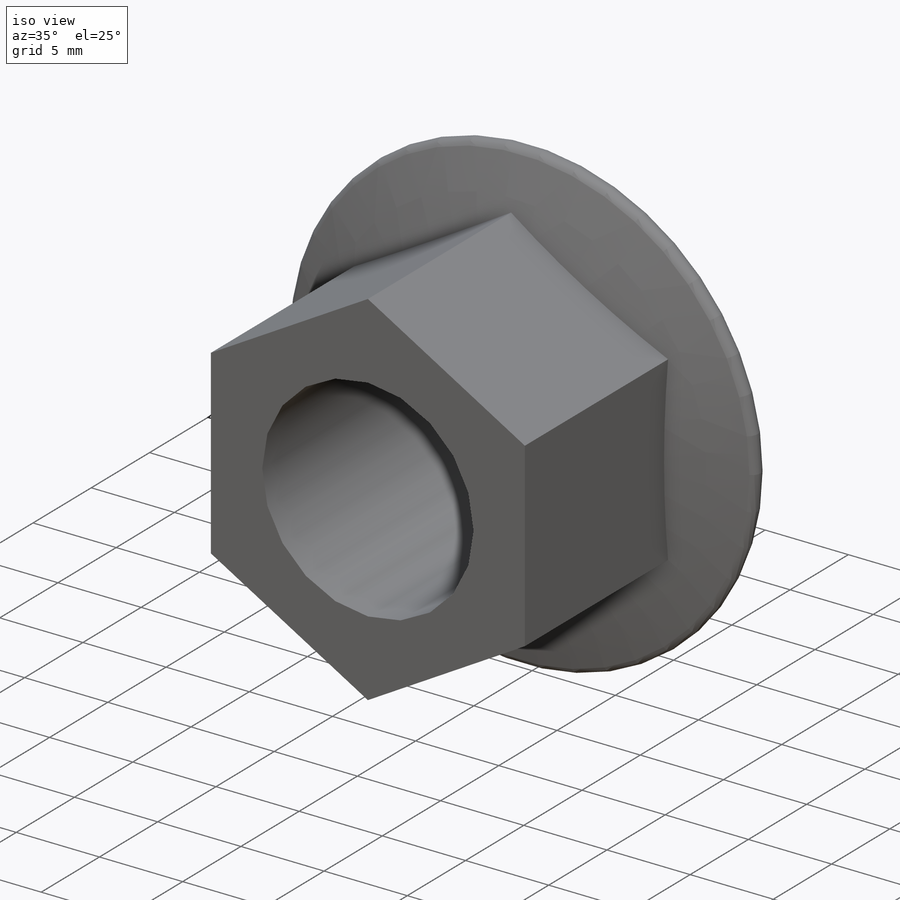
[diagram: iso view]
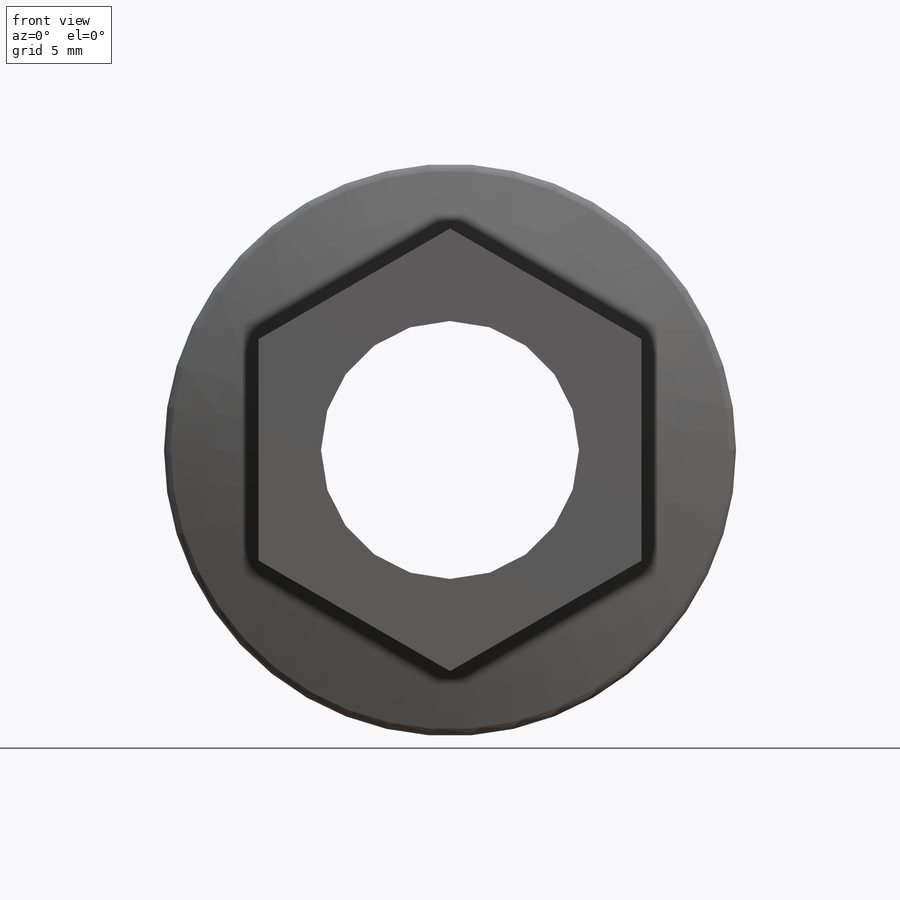
[diagram: front view]
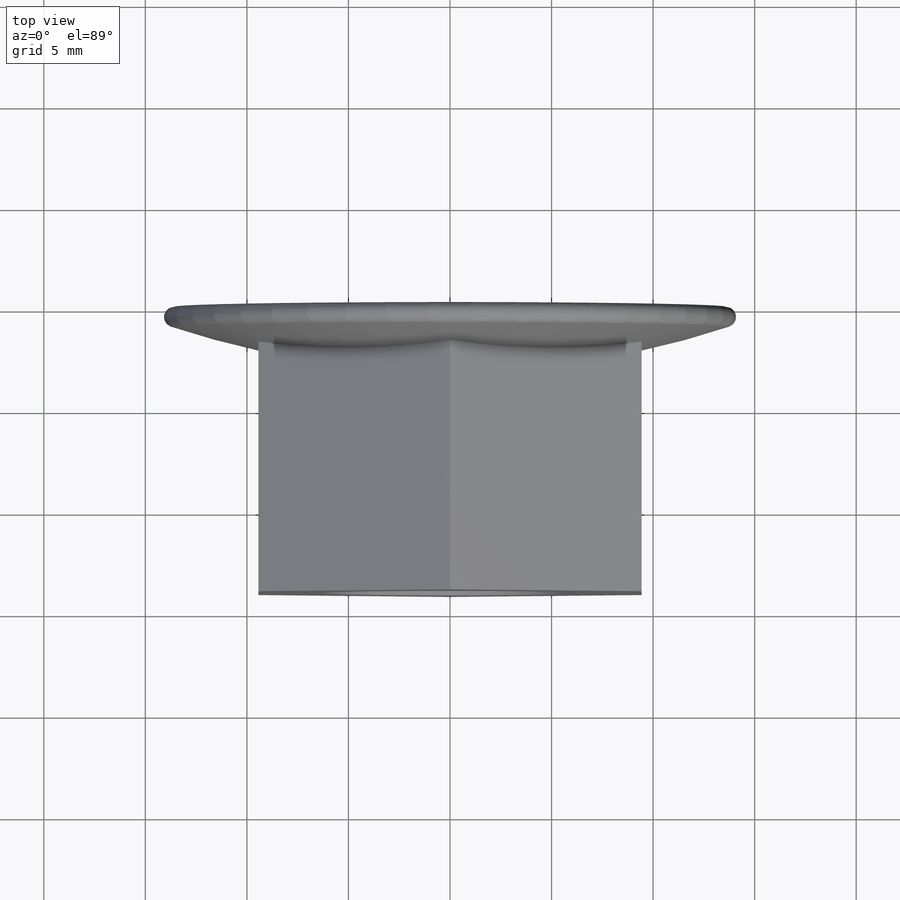
[diagram: top view]
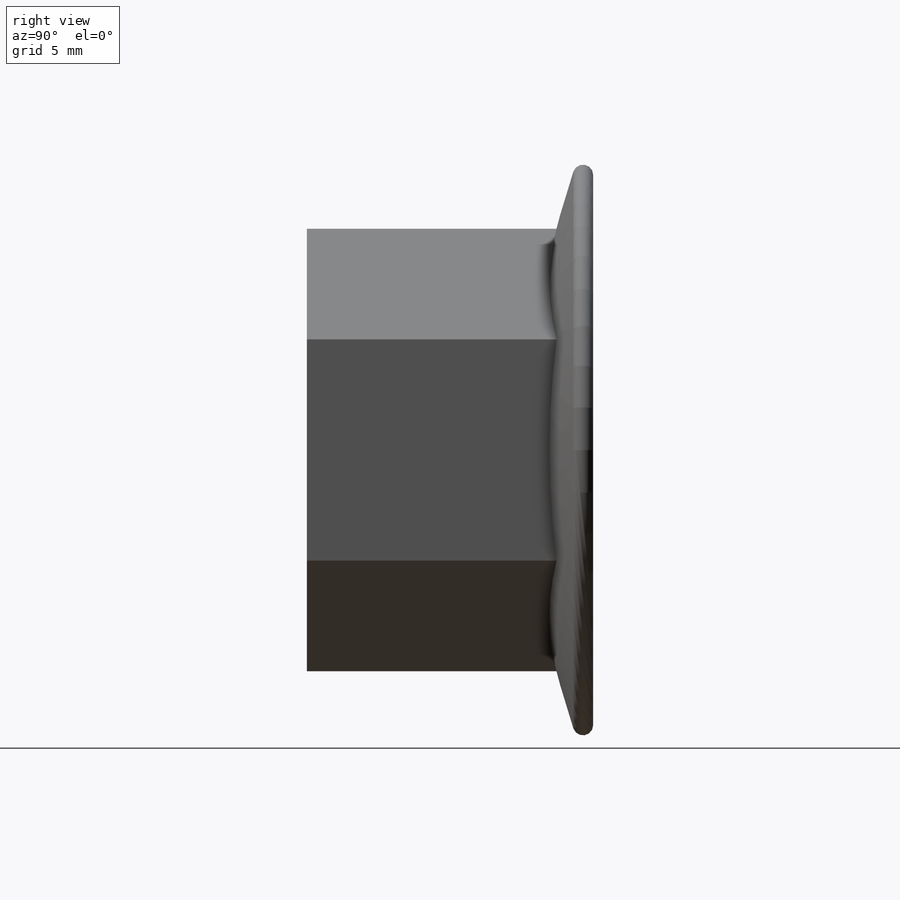
[diagram: right view]
SOLIDWORKS PART (.sldprt)
format: sldprt  version: not decoded by parser v0  size: 1,202,688 bytes
history: native  units: mm
features: plane x3, sketch x3, material x1, extrude x1, revolve x1, cut_extrude x1, thread x1 + 1 further entry (+8 scaffold rows collapsed; 1 parser-record rows omitted)
feature tree (21):
  scaffold x8  (default folders/planes/origin — collapsed)
  material  "Material <not specified>"
  plane  "Plane1"
  plane  "Plane2"
  plane  "Plane3"
  parser-record x1  (decoder bookkeeping rows leaked as tree rows — omitted from the tree; the rows remain in map.json)
  "Design Table"
  sketch  "Head Sketch"  dims[D1=60.0deg D2=60.0deg Flats=14.1351mm]
  extrude  "Head"  Depth=10.795mm Height=10.795mm
  sketch  "Flange Sketch"  dims[D1=~34.782901mm D2=2.5mm D3=20.574mm Flange Height=3.175mm]
  revolve  "Flange"  Angle=360deg Flange Dia=20.574mm
  sketch  "Hole Sketch"  dims[Hole Dia=9.525mm]
  cut_extrude  "Through Hole"  [1 undecoded]
  thread  "Cosmetic Thread1"  Diameter=7.35mm  [1 undecoded]
decode coverage: 6 of 7 modeling features carry decoded parameters; 1 rows unclassified (native names shown)
note: ~ marks probable driven/reference dimensions
note: 2 parameter values undecoded
note: suppression state not decoded; provenance and decode notes live in map.json
